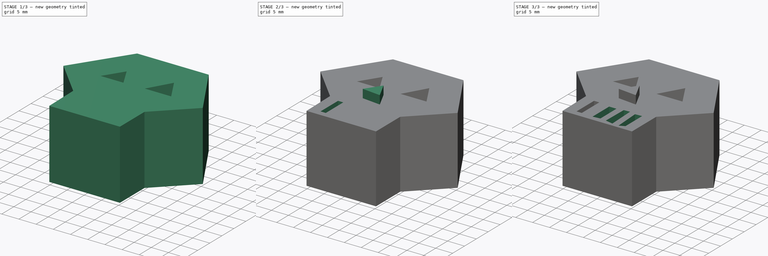
[diagram: build sequence overview — one tinted view per stage of 3, left to right]
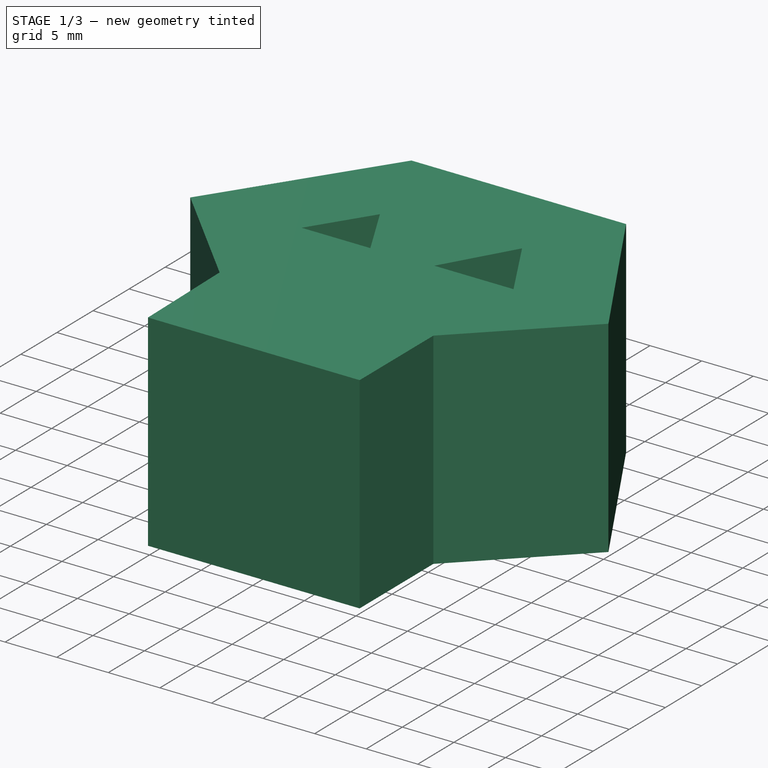
[diagram: stage 1 of 3 — iso view after this stage's code; geometry added in this stage tinted green]
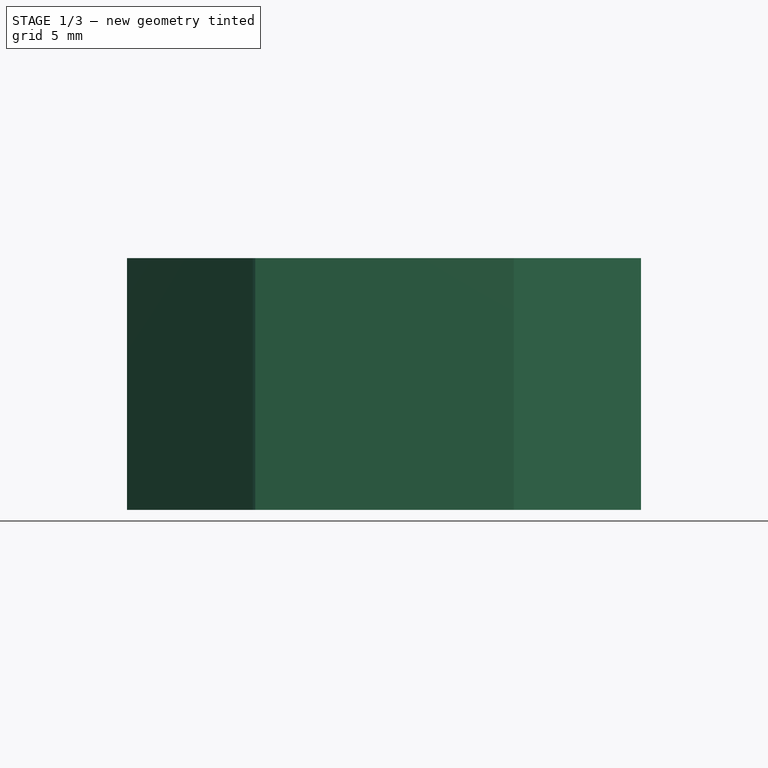
[diagram: stage 1 of 3 — front view after this stage's code; geometry added in this stage tinted green]
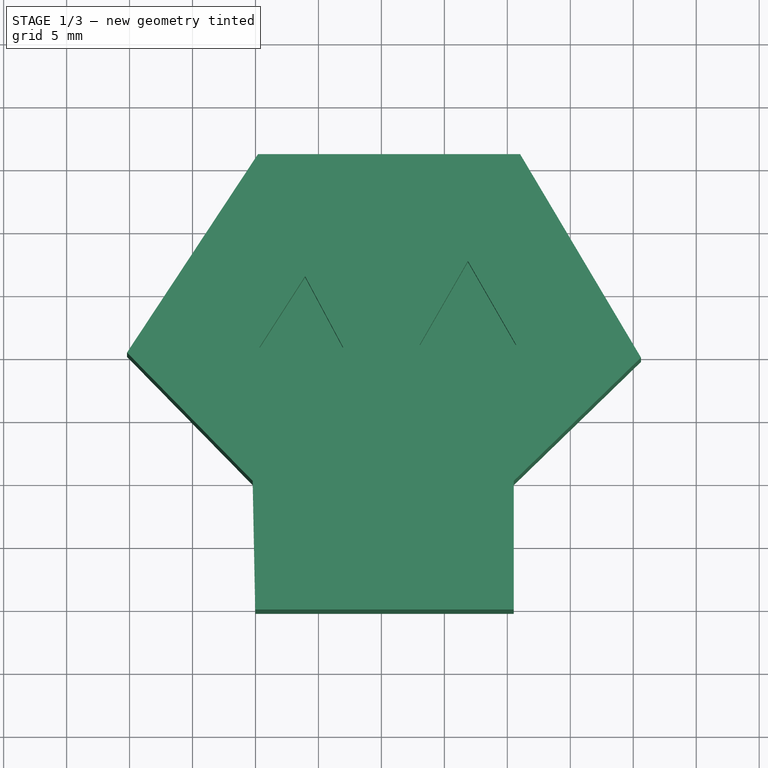
[diagram: stage 1 of 3 — top view after this stage's code; geometry added in this stage tinted green]
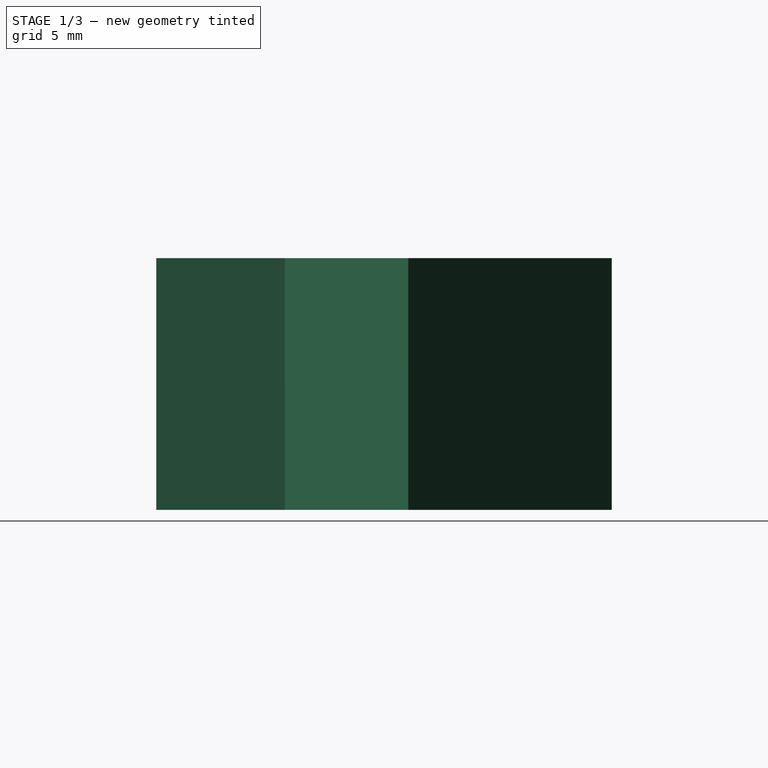
[diagram: stage 1 of 3 — right view after this stage's code; geometry added in this stage tinted green]
FCSTD DOCUMENT  (FreeCAD 0.21R33694 (Git))
Label: OJT1_T17R01_calavera
License: All rights reserved
LicenseURL: http://en.wikipedia.org/wiki/All_rights_reserved
objects: Sketcher::SketchObject×8, PartDesign::Pocket×6, PartDesign::Pad×2, PartDesign::Body×1
note: 25 computed .brp shape members not serialized (recipe doc carries the construction recipe); baked Part::Feature solids carry a one-line shape summary decoded from their .brp

FEATURE [Sketcher::SketchObject] Sketch
  FullyConstrained = false
  MapMode = 5
  Support = -> [XY_Plane]
  sketch-geometry (8):
    g0: LineSegment StartX=-9.80147 StartY=25.9596 StartZ=0 EndX=11.0136 EndY=25.9596 EndZ=0
    g1: LineSegment StartX=11.0136 StartY=25.9596 StartZ=0 EndX=20.6131 EndY=9.80365 EndZ=0
    g2: LineSegment StartX=20.6131 StartY=9.80365 StartZ=0 EndX=10.5051 EndY=0 EndZ=0
    g3: LineSegment StartX=10.5051 StartY=0 StartZ=0 EndX=10.5051 EndY=-10.2081 EndZ=0
    g4: LineSegment StartX=10.5051 StartY=-10.2081 StartZ=0 EndX=-10.0146 EndY=-10.2081 EndZ=0
    g5: LineSegment StartX=-10.0146 StartY=-10.2081 StartZ=0 EndX=-10.2166 EndY=0 EndZ=0
    g6: LineSegment StartX=-10.2166 StartY=0 StartZ=0 EndX=-20.202 EndY=10.202 EndZ=0
    g7: LineSegment StartX=-20.202 StartY=10.202 StartZ=0 EndX=-9.80147 EndY=25.9596 EndZ=0
  constraints (13):
    c: Horizontal(g0)
    c: Coincident(g0,g1)
    c: Coincident(g1,g2)
    c: PointOnObject(g2,g-1)
    c: Coincident(g2,g3)
    c: Vertical(g3)
    c: Coincident(g3,g4)
    c: Horizontal(g4)
    c: Coincident(g4,g5)
    c: PointOnObject(g5,g-1)
    c: Coincident(g5,g6)
    c: Coincident(g6,g7)
    c: Coincident(g7,g0)
FEATURE [PartDesign::Pad] Pad
  Direction = (0,0,1)
  Length = 20
  Length2 = 10
  Profile = -> Sketch
  ReferenceAxis = -> Sketch [N_Axis]
  Type = 0
FEATURE [Sketcher::SketchObject] Sketch001
  FullyConstrained = false
  MapMode = 5
  Placement = pos=(0,0,20) rot=(0,0,1;0rad)
  Support = -> [Pad]
  sketch-geometry (3):
    g0: LineSegment StartX=-6.0606 StartY=16.2626 StartZ=0 EndX=-9.69697 EndY=10.6061 EndZ=0
    g1: LineSegment StartX=-9.69697 StartY=10.6061 StartZ=0 EndX=-3.0303 EndY=10.6061 EndZ=0
    g2: LineSegment StartX=-3.0303 StartY=10.6061 StartZ=0 EndX=-6.0606 EndY=16.2626 EndZ=0
  constraints (3):
    c: Coincident(g0,g1)
    c: Coincident(g1,g2)
    c: Coincident(g2,g0)
FEATURE [Sketcher::SketchObject] Sketch002
  FullyConstrained = false
  MapMode = 5
  Placement = pos=(0,0,20) rot=(0,0,1;0rad)
  Support = -> [Pad]
  sketch-geometry (3):
    g0: LineSegment StartX=10.7071 StartY=10.8081 StartZ=0 EndX=3.03031 EndY=10.8081 EndZ=0
    g1: LineSegment StartX=3.03031 StartY=10.8081 StartZ=0 EndX=6.86869 EndY=17.4747 EndZ=0
    g2: LineSegment StartX=6.86869 StartY=17.4747 StartZ=0 EndX=10.7071 EndY=10.8081 EndZ=0
  constraints (3):
    c: Coincident(g0,g1)
    c: Coincident(g1,g2)
    c: Coincident(g2,g0)
FEATURE [PartDesign::Pocket] Pocket
  BaseFeature = -> Pad
  Direction = (0,0,-1)
  Length = 5
  Length2 = 5
  Profile = -> Sketch002
  ReferenceAxis = -> Sketch002 [N_Axis]
  Type = 0
FEATURE [PartDesign::Pocket] Pocket001
  BaseFeature = -> Pocket
  Direction = (0,0,-1)
  Length = 5
  Length2 = 5
  Profile = -> Sketch001
  ReferenceAxis = -> Sketch001 [N_Axis]
  Type = 0
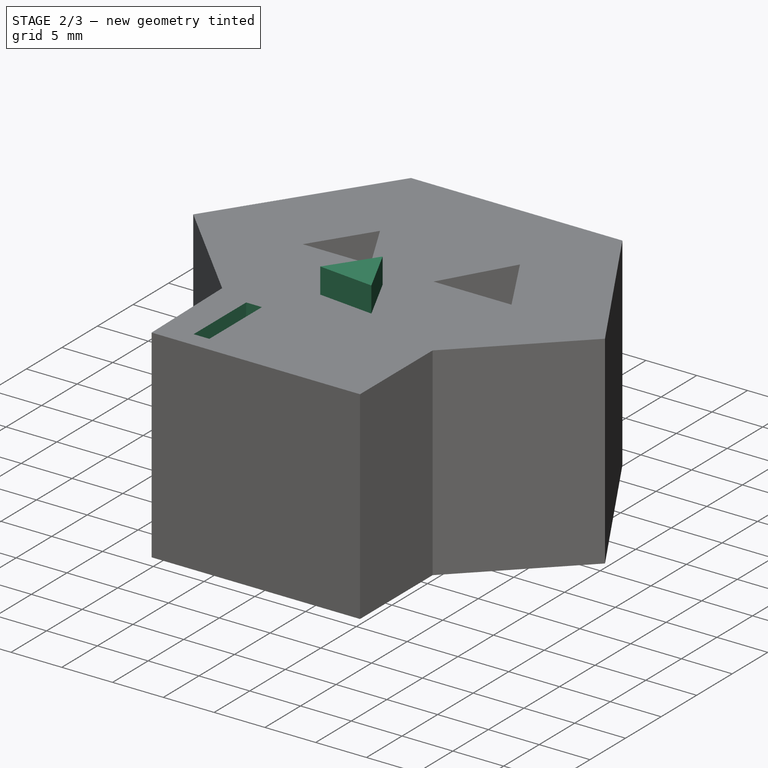
[diagram: stage 2 of 3 — iso view after this stage's code; geometry added in this stage tinted green]
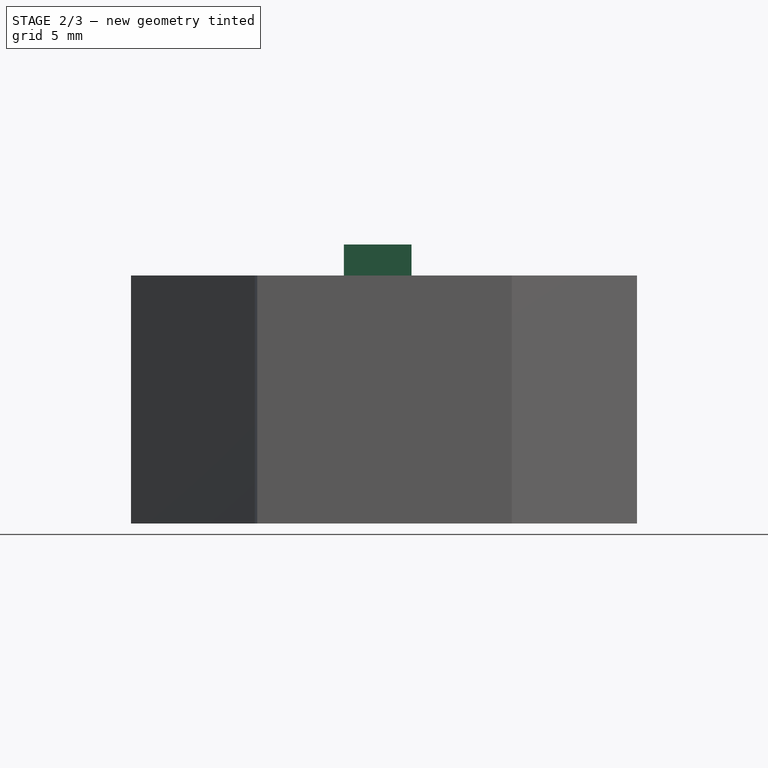
[diagram: stage 2 of 3 — front view after this stage's code; geometry added in this stage tinted green]
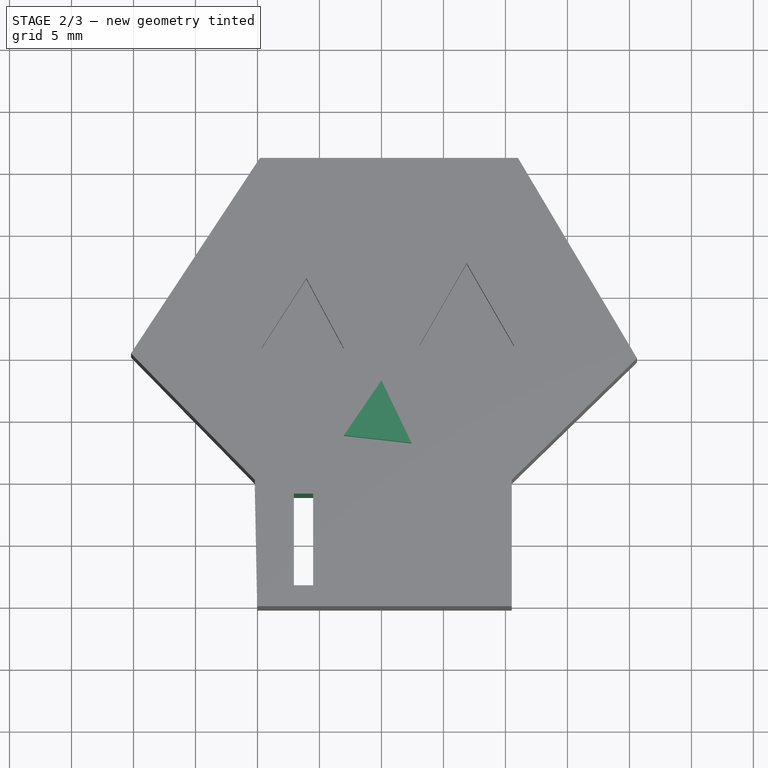
[diagram: stage 2 of 3 — top view after this stage's code; geometry added in this stage tinted green]
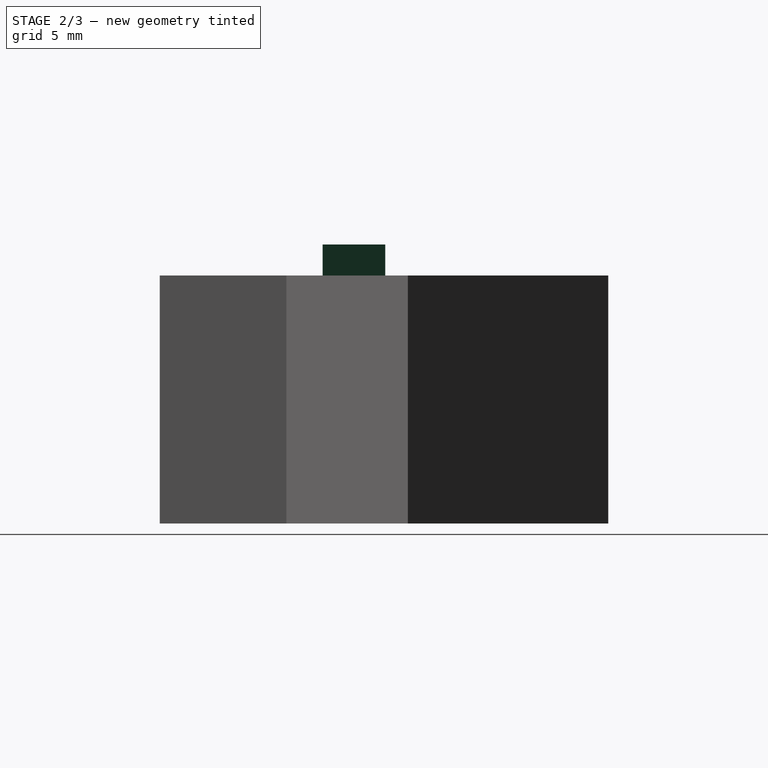
[diagram: stage 2 of 3 — right view after this stage's code; geometry added in this stage tinted green]
FEATURE [Sketcher::SketchObject] Sketch003
  FullyConstrained = false
  MapMode = 5
  Placement = pos=(0,0,20) rot=(0,0,1;0rad)
  Support = -> [Pocket001]
  sketch-geometry (3):
    g0: LineSegment StartX=0 StartY=7.9798 StartZ=0 EndX=-3.0303 EndY=3.53535 EndZ=0
    g1: LineSegment StartX=-3.0303 StartY=3.53535 StartZ=0 EndX=2.42424 EndY=2.92929 EndZ=0
    g2: LineSegment StartX=2.42424 StartY=2.92929 StartZ=0 EndX=0 EndY=7.9798 EndZ=0
  constraints (4):
    c: PointOnObject(g0,g-2)
    c: Coincident(g0,g1)
    c: Coincident(g1,g2)
    c: Coincident(g2,g0)
FEATURE [PartDesign::Pad] Pad001
  BaseFeature = -> Pocket001
  Direction = (0,0,1)
  Length = 2.5
  Length2 = 10
  Profile = -> Sketch003
  ReferenceAxis = -> Sketch003 [N_Axis]
  Type = 0
FEATURE [Sketcher::SketchObject] Sketch004
  FullyConstrained = false
  MapMode = 5
  Placement = pos=(0,0,20) rot=(0,0,1;0rad)
  Support = -> [Pad001]
  sketch-geometry (4):
    g0: LineSegment StartX=-7.06438 StartY=-1.12225 StartZ=0 EndX=-7.06438 EndY=-8.51133 EndZ=0
    g1: LineSegment StartX=-7.06438 StartY=-8.51133 StartZ=0 EndX=-5.51505 EndY=-8.51133 EndZ=0
    g2: LineSegment StartX=-5.51505 StartY=-8.51133 StartZ=0 EndX=-5.51505 EndY=-1.12225 EndZ=0
    g3: LineSegment StartX=-5.51505 StartY=-1.12225 StartZ=0 EndX=-7.06438 EndY=-1.12225 EndZ=0
  constraints (8):
    c: Vertical(g0)
    c: Coincident(g0,g1)
    c: Horizontal(g1)
    c: Coincident(g1,g2)
    c: Vertical(g2)
    c: Coincident(g2,g3)
    c: Coincident(g3,g0)
    c: Horizontal(g3)
FEATURE [PartDesign::Pocket] Pocket002
  BaseFeature = -> Pad001
  Direction = (0,0,-1)
  Length = 5
  Length2 = 5
  Profile = -> Sketch004
  ReferenceAxis = -> Sketch004 [N_Axis]
  Type = 1
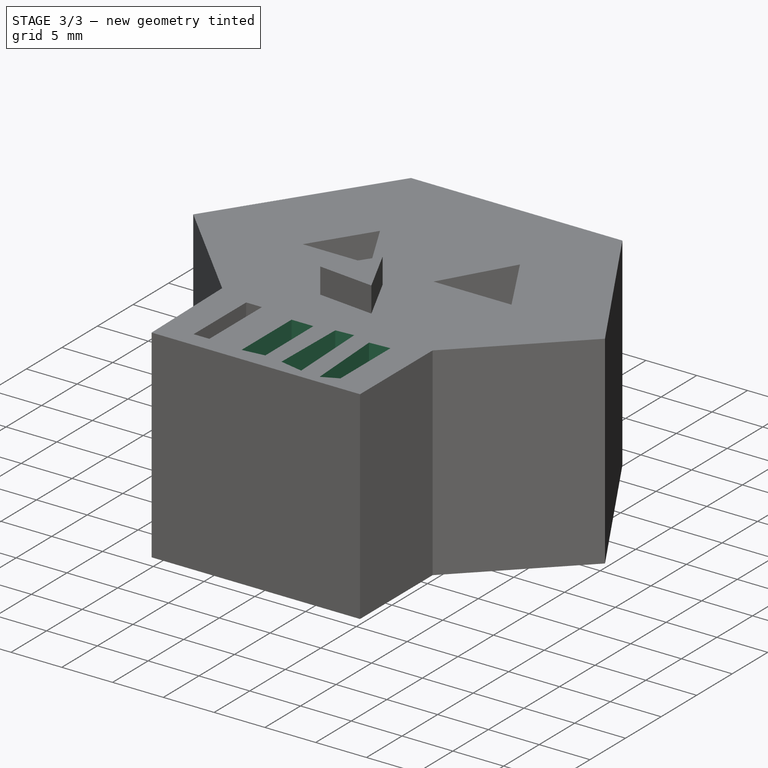
[diagram: stage 3 of 3 — iso view after this stage's code; geometry added in this stage tinted green]
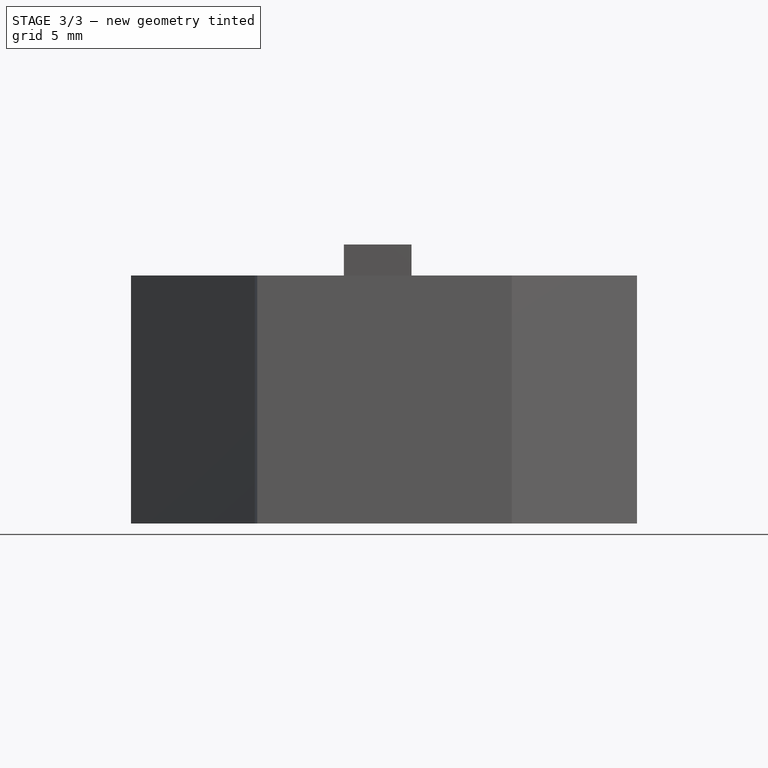
[diagram: stage 3 of 3 — front view after this stage's code; geometry added in this stage tinted green]
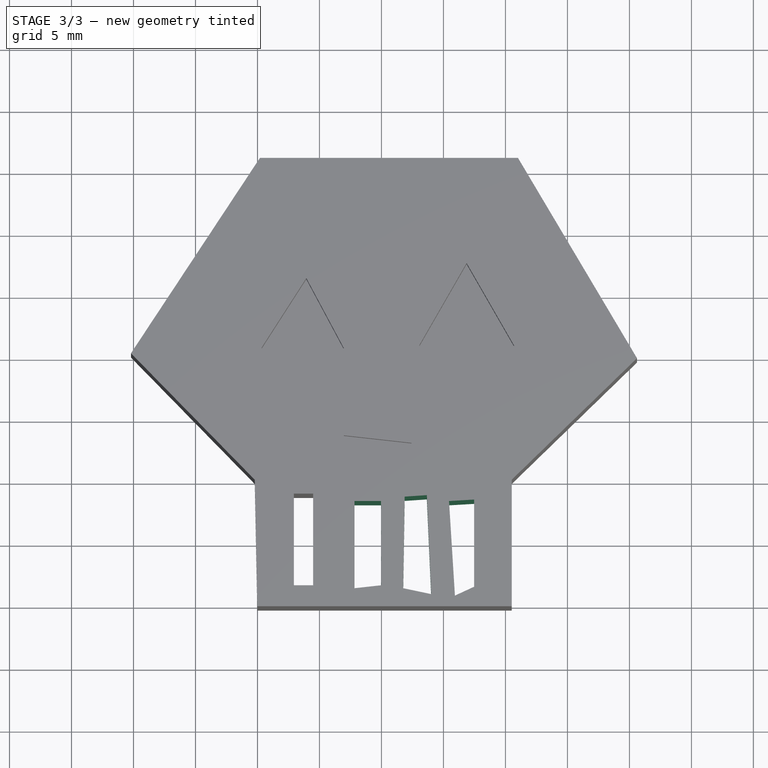
[diagram: stage 3 of 3 — top view after this stage's code; geometry added in this stage tinted green]
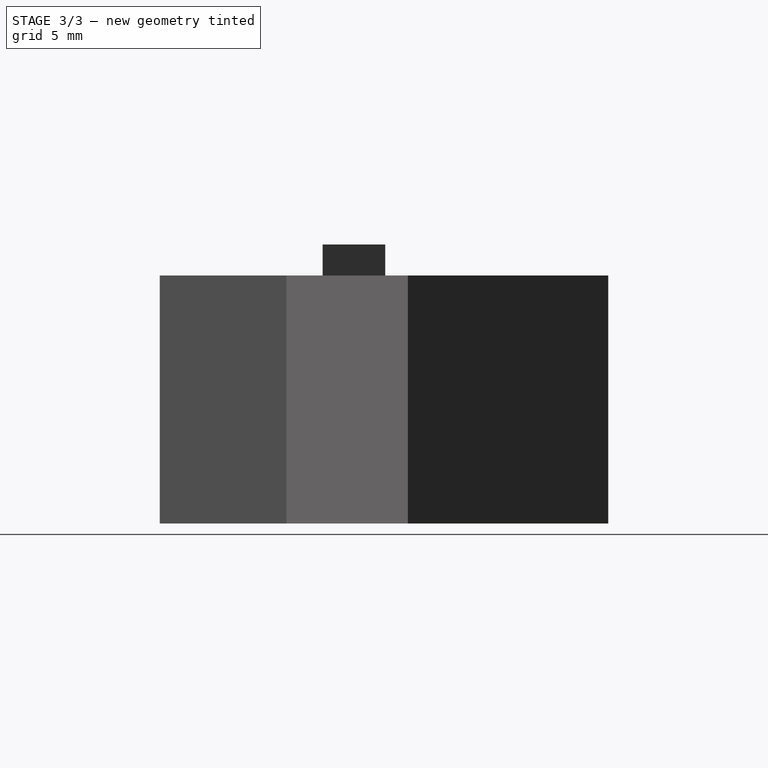
[diagram: stage 3 of 3 — right view after this stage's code; geometry added in this stage tinted green]
FEATURE [Sketcher::SketchObject] Sketch005
  FullyConstrained = false
  MapMode = 5
  Placement = pos=(0,0,20) rot=(0,0,1;0rad)
  Support = -> [Pocket002]
  sketch-geometry (4):
    g0: LineSegment StartX=-2.17805 StartY=-1.71814 StartZ=0 EndX=-2.17805 EndY=-8.74968 EndZ=0
    g1: LineSegment StartX=-2.17805 StartY=-8.74968 StartZ=0 EndX=0 EndY=-8.51133 EndZ=0
    g2: LineSegment StartX=0 StartY=-8.51133 StartZ=0 EndX=-0.032834 EndY=-1.71814 EndZ=0
    g3: LineSegment StartX=-0.032834 StartY=-1.71814 StartZ=0 EndX=-2.17805 EndY=-1.71814 EndZ=0
  constraints (7):
    c: Vertical(g0)
    c: Coincident(g0,g1)
    c: PointOnObject(g1,g-2)
    c: Coincident(g1,g2)
    c: Coincident(g2,g3)
    c: Coincident(g3,g0)
    c: Horizontal(g3)
FEATURE [PartDesign::Pocket] Pocket003
  BaseFeature = -> Pocket002
  Direction = (0,0,-1)
  Length = 5
  Length2 = 5
  Profile = -> Sketch005
  ReferenceAxis = -> Sketch005 [N_Axis]
  Type = 1
FEATURE [Sketcher::SketchObject] Sketch006
  FullyConstrained = false
  MapMode = 5
  Placement = pos=(0,0,20) rot=(0,0,1;0rad)
  Support = -> [Pocket003]
  sketch-geometry (4):
    g0: LineSegment StartX=1.87402 StartY=-1.36061 StartZ=0 EndX=1.75485 EndY=-8.74968 EndZ=0
    g1: LineSegment StartX=1.75485 StartY=-8.74968 StartZ=0 EndX=4.01924 EndY=-9.2264 EndZ=0
    g2: LineSegment StartX=4.01924 StartY=-9.2264 StartZ=0 EndX=3.6617 EndY=-1.24143 EndZ=0
    g3: LineSegment StartX=3.6617 StartY=-1.24143 StartZ=0 EndX=1.87402 EndY=-1.36061 EndZ=0
  constraints (4):
    c: Coincident(g0,g1)
    c: Coincident(g1,g2)
    c: Coincident(g2,g3)
    c: Coincident(g3,g0)
FEATURE [PartDesign::Pocket] Pocket004
  BaseFeature = -> Pocket003
  Direction = (0,0,-1)
  Length = 5
  Length2 = 5
  Profile = -> Sketch006
  ReferenceAxis = -> Sketch006 [N_Axis]
  Type = 1
FEATURE [Sketcher::SketchObject] Sketch007
  FullyConstrained = false
  MapMode = 5
  Placement = pos=(0,0,20) rot=(0,0,1;0rad)
  Support = -> [Pocket004]
  sketch-geometry (4):
    g0: LineSegment StartX=5.44939 StartY=-1.71815 StartZ=0 EndX=5.9261 EndY=-9.34558 EndZ=0
    g1: LineSegment StartX=5.9261 StartY=-9.34558 StartZ=0 EndX=7.47541 EndY=-8.63051 EndZ=0
    g2: LineSegment StartX=7.47541 StartY=-8.63051 StartZ=0 EndX=7.47541 EndY=-1.59897 EndZ=0
    g3: LineSegment StartX=7.47541 StartY=-1.59897 StartZ=0 EndX=5.44939 EndY=-1.71815 EndZ=0
  constraints (5):
    c: Coincident(g0,g1)
    c: Coincident(g1,g2)
    c: Vertical(g2)
    c: Coincident(g2,g3)
    c: Coincident(g3,g0)
FEATURE [PartDesign::Pocket] Pocket005
  BaseFeature = -> Pocket004
  Direction = (0,0,-1)
  Length = 5
  Length2 = 5
  Profile = -> Sketch007
  ReferenceAxis = -> Sketch007 [N_Axis]
  Type = 1
FEATURE [PartDesign::Body] Body
  Group = -> [Sketch,Pad,Sketch001,Sketch002,Pocket,Pocket001,Sketch003,Pad001,Sketch004,Pocket002,Sketch005,Pocket003,Sketch006,Pocket004,Sketch007,Pocket005]
  Origin = -> Origin
  Tip = -> Pocket005
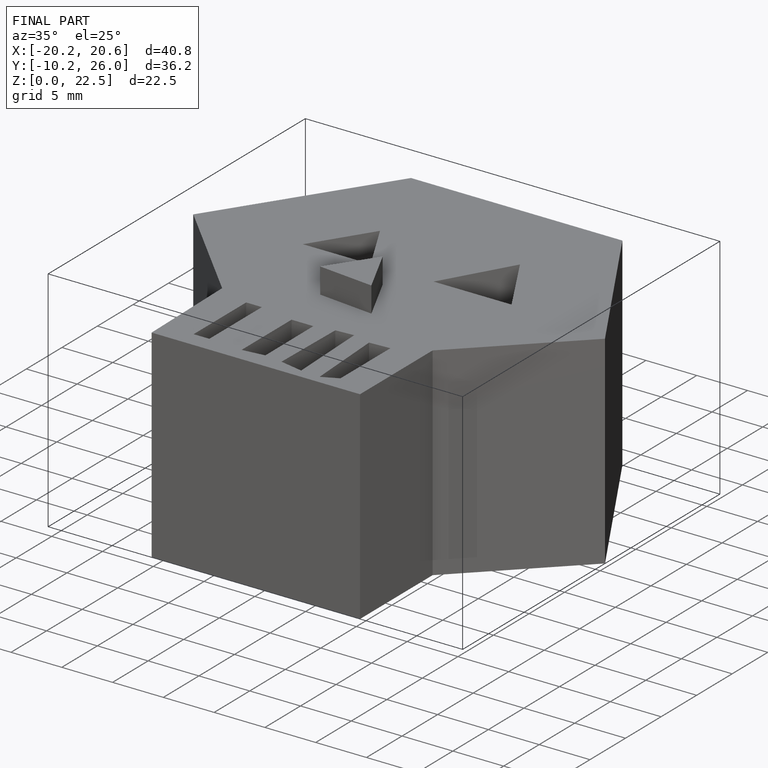
[diagram: finished part — iso view with bounding-box wireframe]
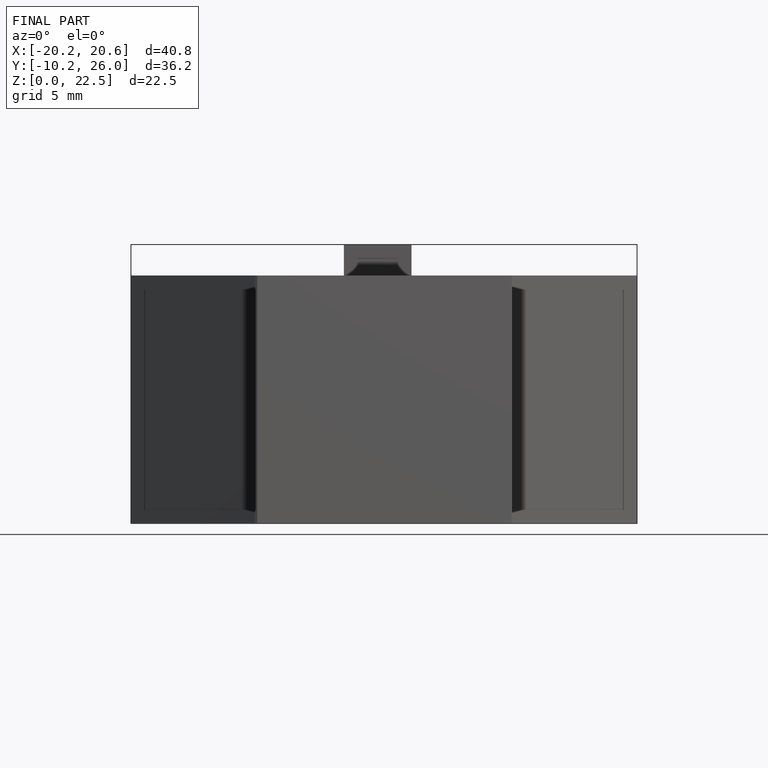
[diagram: finished part — front view with bounding-box wireframe]
